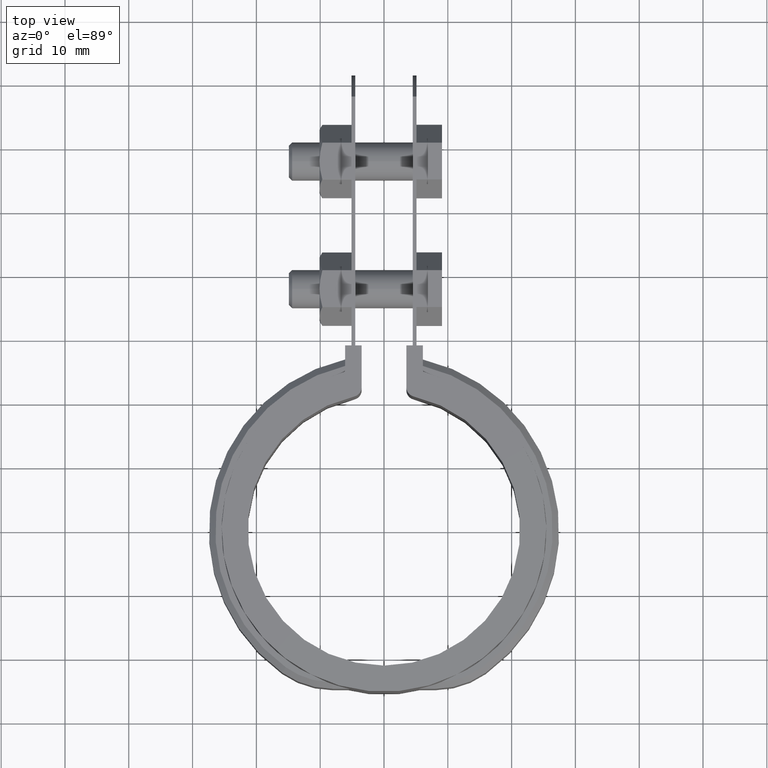
[diagram: clean part render]
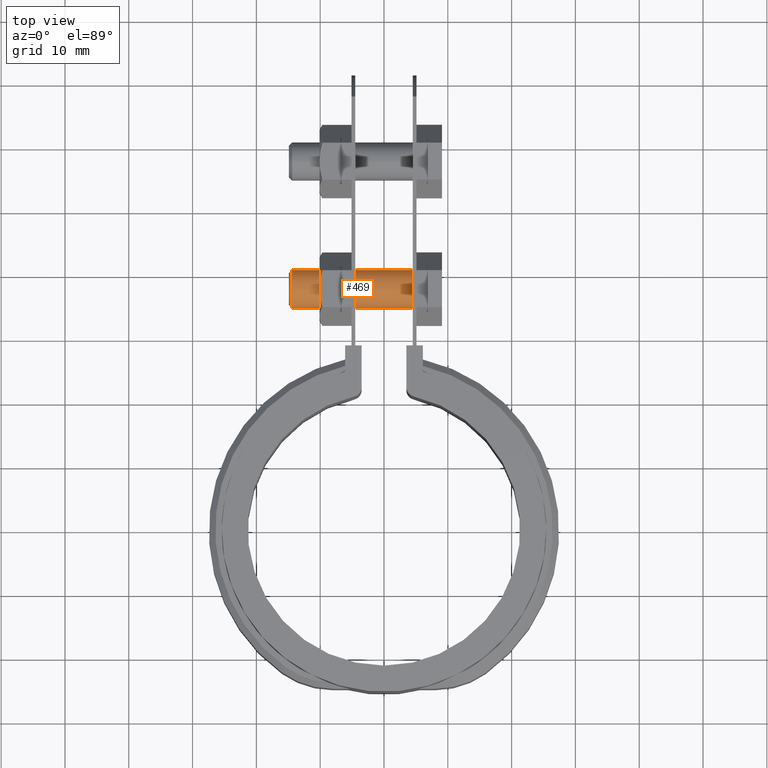
[diagram: same view with one face highlighted and labeled with its STEP entity id]
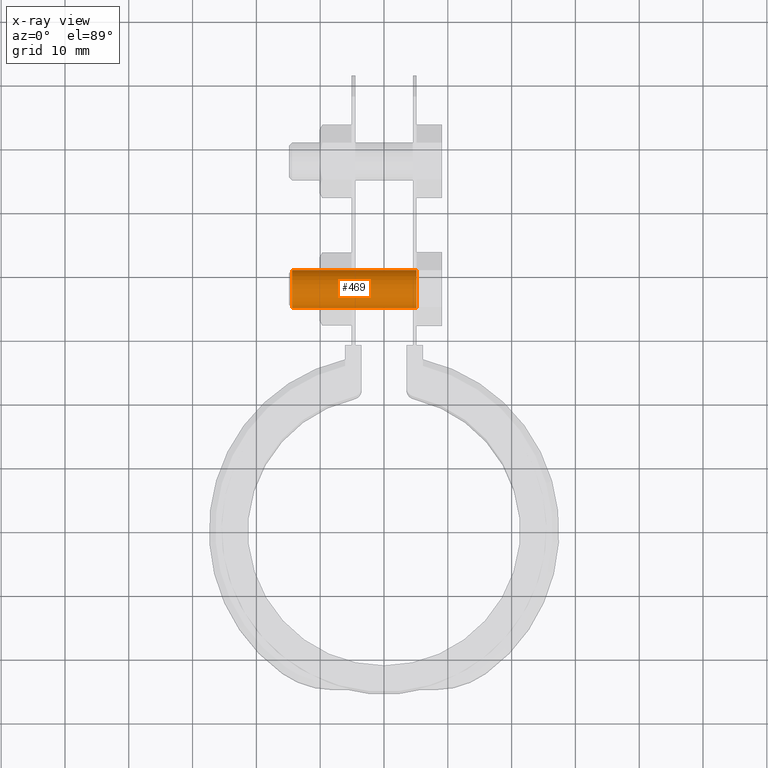
[diagram: x-ray of the same camera — body ghosted, the highlighted face saturated]
A machine part, top view. The second image highlights one B-rep face of the part: STEP entity #469.
The next image is the same camera in x-ray: the body ghosted, the highlighted face saturated — about 0% of this face is hidden behind the body in this view.
In plain terms, the highlighted cylindrical surface (bore or boss wall) has radius 3 mm, axis along (1, 0, 0).
Its self-contained STEP definition (entity closure, byte-faithful):
#469 = ADVANCED_FACE( '', ( #866, #867 ), #868, .T. );
#866 = FACE_OUTER_BOUND( '', #1712, .T. );
#867 = FACE_OUTER_BOUND( '', #1713, .T. );
#868 = CYLINDRICAL_SURFACE( '', #1714, 3.00000000000000 );
#1712 = EDGE_LOOP( '', ( #4469 ) );
#1713 = EDGE_LOOP( '', ( #4470 ) );
#1714 = AXIS2_PLACEMENT_3D( '', #4471, #4472, #4473 );
#4469 = ORIENTED_EDGE( '', *, *, #5313, .T. );
#4470 = ORIENTED_EDGE( '', *, *, #5307, .F. );
#4471 = CARTESIAN_POINT( '', ( 13.5487843911358, 37.9025110199728, -12.5000000000000 ) );
#4472 = DIRECTION( '', ( 1.00000000000000, 1.76868732008753E-074, 0.000000000000000 ) );
#4473 = DIRECTION( '', ( 0.000000000000000, 0.000000000000000, 1.00000000000000 ) );
#5307 = EDGE_CURVE( '', #6166, #6166, #6167, .F. );
#5313 = EDGE_CURVE( '', #6176, #6176, #6177, .T. );
#6166 = VERTEX_POINT( '', #9752 );
#6167 = CIRCLE( '', #9753, 3.00000000000000 );
#6176 = VERTEX_POINT( '', #9767 );
#6177 = CIRCLE( '', #9768, 3.00000000000000 );
#9752 = CARTESIAN_POINT( '', ( 5.10000000000000, 37.9025110199728, -9.50000000000001 ) );
#9753 = AXIS2_PLACEMENT_3D( '', #10593, #10594, #10595 );
#9767 = CARTESIAN_POINT( '', ( -14.4000000000000, 37.9025110199728, -15.5000000000000 ) );
#9768 = AXIS2_PLACEMENT_3D( '', #10601, #10602, #10603 );
#10593 = CARTESIAN_POINT( '', ( 5.10000000000000, 37.9025110199728, -12.5000000000000 ) );
#10594 = DIRECTION( '', ( -1.00000000000000, -1.76868732008753E-074, 0.000000000000000 ) );
#10595 = DIRECTION( '', ( 0.000000000000000, 0.000000000000000, 1.00000000000000 ) );
#10601 = CARTESIAN_POINT( '', ( -14.4000000000000, 37.9025110199728, -12.5000000000000 ) );
#10602 = DIRECTION( '', ( 1.00000000000000, 1.76868732008753E-074, 0.000000000000000 ) );
#10603 = DIRECTION( '', ( 0.000000000000000, 0.000000000000000, -1.00000000000000 ) );